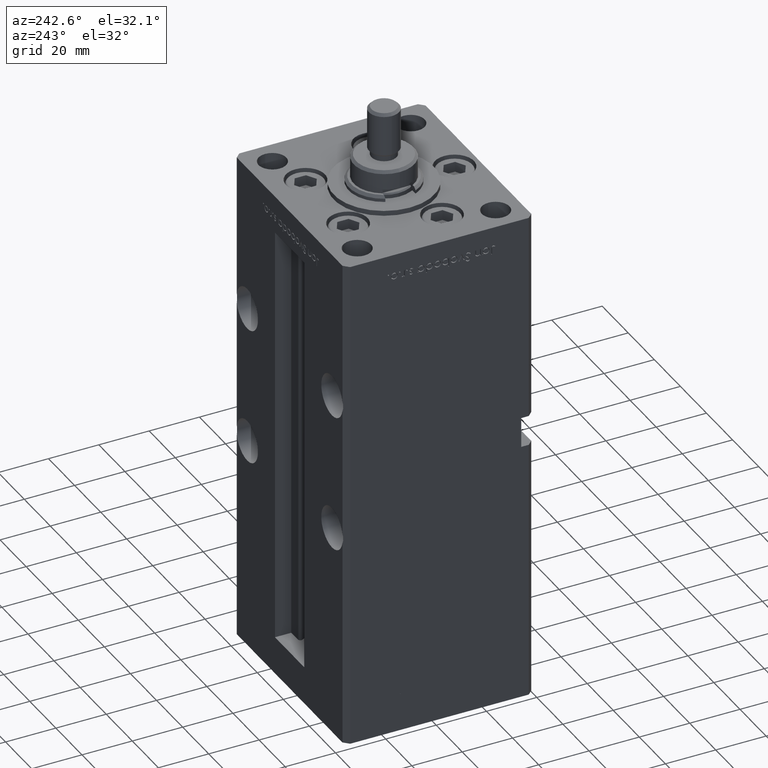
[diagram: clean part render]
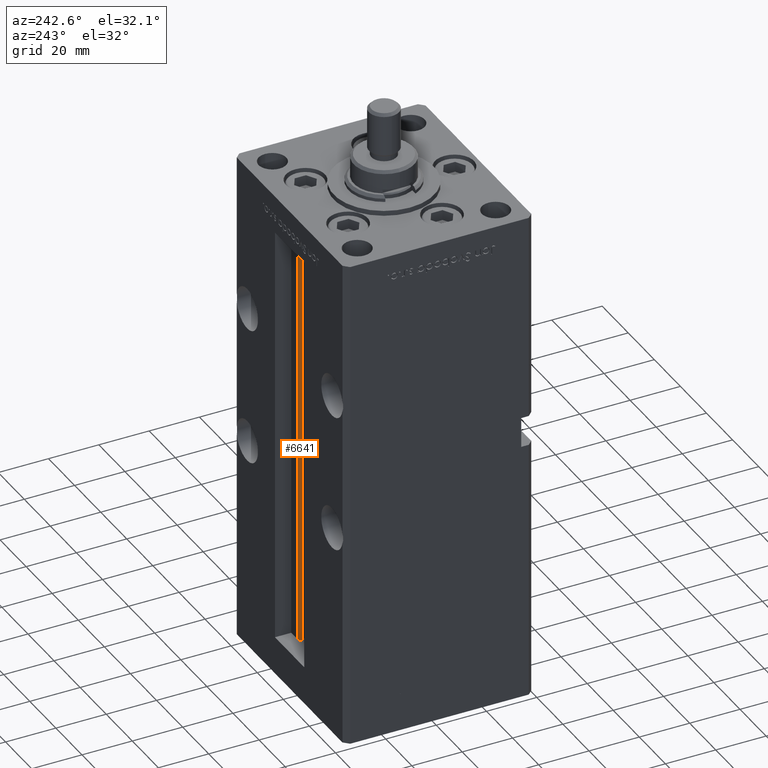
[diagram: same view with one face highlighted and labeled with its STEP entity id]
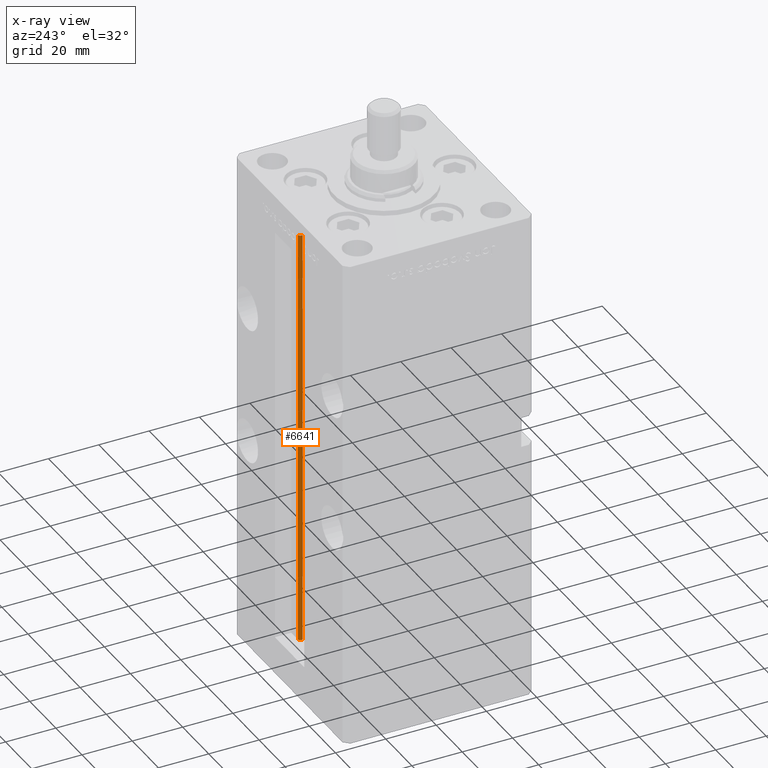
[diagram: x-ray of the same camera — body ghosted, the highlighted face saturated]
A machine part, auxiliary view. The second image highlights one B-rep face of the part: STEP entity #6641.
The next image is the same camera in x-ray: the body ghosted, the highlighted face saturated — about 0% of this face is hidden behind the body in this view.
In plain terms, the highlighted cylindrical surface (edge-blend (fillet) strip) has radius 0.9333 mm, axis along (0, 0, 1).
Its self-contained STEP definition (entity closure, byte-faithful):
#17 = LINE ( 'NONE', #8547, #53243 ) ;
#637 = VERTEX_POINT ( 'NONE', #23250 ) ;
#1103 = DIRECTION ( 'NONE',  ( -0.000000000000000000, -0.000000000000000000, 1.000000000000000000 ) ) ;
#1982 = VERTEX_POINT ( 'NONE', #4949 ) ;
#3860 = DIRECTION ( 'NONE',  ( -0.000000000000000000, -0.000000000000000000, 1.000000000000000000 ) ) ;
#4949 = CARTESIAN_POINT ( 'NONE',  ( 6.183333333333997928, 31.00000000000000000, 168.5000000000000000 ) ) ;
#5113 = VERTEX_POINT ( 'NONE', #21084 ) ;
#6641 = ADVANCED_FACE ( 'NONE', ( #54213 ), #45692, .T. ) ;
#6953 = EDGE_CURVE ( 'NONE', #637, #5113, #27195, .T. ) ;
#7299 = CARTESIAN_POINT ( 'NONE',  ( 5.375042956467944499, 29.59999999999899600, 168.5000000000000000 ) ) ;
#7955 = DIRECTION ( 'NONE',  ( 1.000000000000000000, 0.000000000000000000, 0.000000000000000000 ) ) ;
#8547 = CARTESIAN_POINT ( 'NONE',  ( 5.375042956467947164, 29.59999999999899245, 0.000000000000000000 ) ) ;
#9295 = EDGE_LOOP ( 'NONE', ( #30133, #9774, #14427, #36216 ) ) ;
#9497 = AXIS2_PLACEMENT_3D ( 'NONE', #23620, #23353, #48882 ) ;
#9774 = ORIENTED_EDGE ( 'NONE', *, *, #6953, .F. ) ;
#12145 = DIRECTION ( 'NONE',  ( -0.000000000000000000, -0.000000000000000000, 1.000000000000000000 ) ) ;
#14427 = ORIENTED_EDGE ( 'NONE', *, *, #32493, .T. ) ;
#21084 = CARTESIAN_POINT ( 'NONE',  ( 6.183333333333997928, 31.00000000000000000, 0.000000000000000000 ) ) ;
#22784 = AXIS2_PLACEMENT_3D ( 'NONE', #25660, #12145, #37463 ) ;
#23250 = CARTESIAN_POINT ( 'NONE',  ( 5.375042956467947164, 29.59999999999899245, 0.000000000000000000 ) ) ;
#23353 = DIRECTION ( 'NONE',  ( 0.000000000000000000, 0.000000000000000000, -1.000000000000000000 ) ) ;
#23620 = CARTESIAN_POINT ( 'NONE',  ( 6.183333333333997928, 30.06666666666599852, 168.5000000000000000 ) ) ;
#25401 = VERTEX_POINT ( 'NONE', #7299 ) ;
#25442 = AXIS2_PLACEMENT_3D ( 'NONE', #42063, #45900, #7955 ) ;
#25660 = CARTESIAN_POINT ( 'NONE',  ( 6.183333333333997928, 30.06666666666599852, 0.000000000000000000 ) ) ;
#27195 = CIRCLE ( 'NONE', #25442, 0.9333333333340008142 ) ;
#30133 = ORIENTED_EDGE ( 'NONE', *, *, #51860, .F. ) ;
#30818 = CARTESIAN_POINT ( 'NONE',  ( 6.183333333333997928, 31.00000000000000000, 0.000000000000000000 ) ) ;
#32493 = EDGE_CURVE ( 'NONE', #637, #25401, #17, .T. ) ;
#36216 = ORIENTED_EDGE ( 'NONE', *, *, #36651, .T. ) ;
#36651 = EDGE_CURVE ( 'NONE', #25401, #1982, #41076, .T. ) ;
#37463 = DIRECTION ( 'NONE',  ( 1.000000000000000000, 0.000000000000000000, 0.000000000000000000 ) ) ;
#41076 = CIRCLE ( 'NONE', #9497, 0.9333333333340008142 ) ;
#42063 = CARTESIAN_POINT ( 'NONE',  ( 6.183333333333997928, 30.06666666666599852, 0.000000000000000000 ) ) ;
#44333 = VECTOR ( 'NONE', #1103, 1000.000000000000000 ) ;
#45692 = CYLINDRICAL_SURFACE ( 'NONE', #22784, 0.9333333333340008142 ) ;
#45900 = DIRECTION ( 'NONE',  ( -0.000000000000000000, -0.000000000000000000, -1.000000000000000000 ) ) ;
#48882 = DIRECTION ( 'NONE',  ( 1.000000000000000000, 0.000000000000000000, 0.000000000000000000 ) ) ;
#50885 = LINE ( 'NONE', #30818, #44333 ) ;
#51860 = EDGE_CURVE ( 'NONE', #5113, #1982, #50885, .T. ) ;
#53243 = VECTOR ( 'NONE', #3860, 1000.000000000000000 ) ;
#54213 = FACE_OUTER_BOUND ( 'NONE', #9295, .T. ) ;